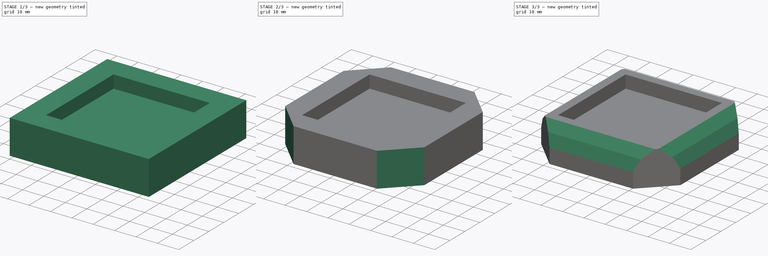
[diagram: build sequence overview — one tinted view per stage of 3, left to right]
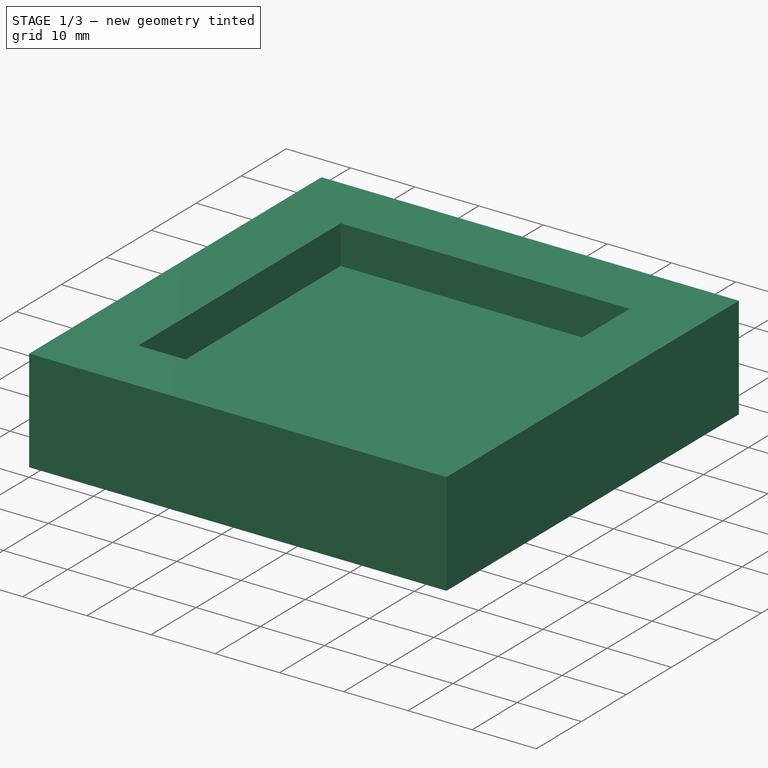
[diagram: stage 1 of 3 — iso view after this stage's code; geometry added in this stage tinted green]
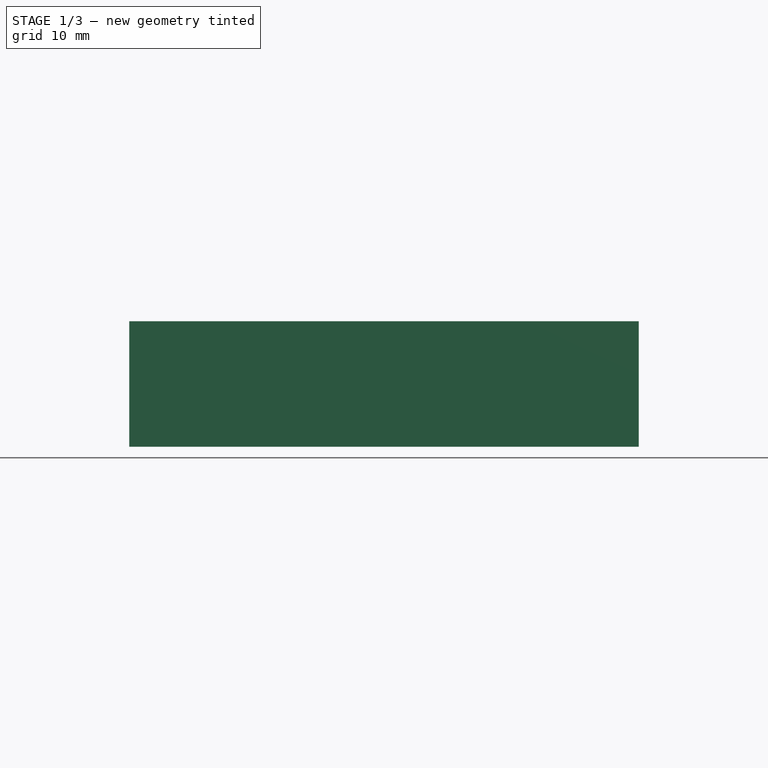
[diagram: stage 1 of 3 — front view after this stage's code; geometry added in this stage tinted green]
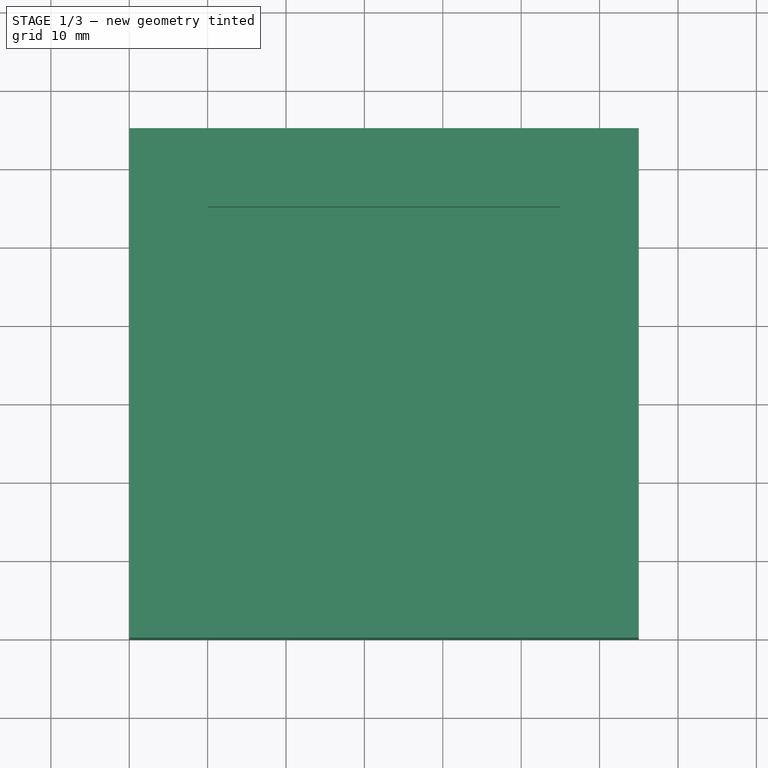
[diagram: stage 1 of 3 — top view after this stage's code; geometry added in this stage tinted green]
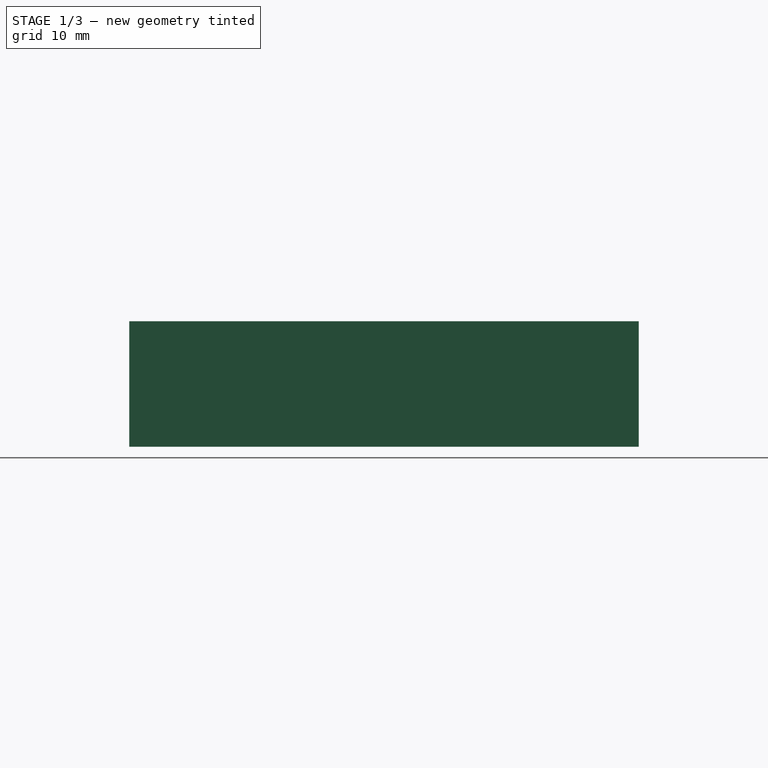
[diagram: stage 1 of 3 — right view after this stage's code; geometry added in this stage tinted green]
FCSTD DOCUMENT  (FreeCAD 0.17R7775 (Git))
Label: anti_skid_pad
License: All rights reserved
LicenseURL: http://en.wikipedia.org/wiki/All_rights_reserved
objects: PartDesign::Chamfer×3, Sketcher::SketchObject×2, PartDesign::Pad×1, PartDesign::Pocket×1, PartDesign::Body×1
note: 10 computed .brp shape members not serialized (recipe doc carries the construction recipe); baked Part::Feature solids carry a one-line shape summary decoded from their .brp

FEATURE [Sketcher::SketchObject] Sketch
  MapMode = 5
  Support = -> [XY_Plane]
  sketch-geometry (4):
    g0: LineSegment StartX=0 StartY=0 StartZ=0 EndX=65 EndY=0 EndZ=0
    g1: LineSegment StartX=65 StartY=0 StartZ=0 EndX=65 EndY=65 EndZ=0
    g2: LineSegment StartX=65 StartY=65 StartZ=0 EndX=0 EndY=65 EndZ=0
    g3: LineSegment StartX=0 StartY=65 StartZ=0 EndX=0 EndY=0 EndZ=0
  constraints (11):
    c: Coincident(g0,g1)
    c: Coincident(g1,g2)
    c: Coincident(g2,g3)
    c: Coincident(g3,g0)
    c: Horizontal(g0)
    c: Horizontal(g2)
    c: Vertical(g1)
    c: Vertical(g3)
    c: Coincident(g0,g-1)
    c: Equal(g2,g3)
    c: DistanceY(g3,g3) = 65
FEATURE [PartDesign::Pad] Pad
  Length = 16
  Length2 = 100
  Profile = -> Sketch
  Type = 0
FEATURE [Sketcher::SketchObject] Sketch001
  ExternalGeometry = -> [Pad]
  MapMode = 5
  Placement = pos=(0,0,16) rot=(0,0,1;0rad)
  Support = -> [Pad]
  sketch-geometry (12):
    g0: LineSegment StartX=10 StartY=10 StartZ=0 EndX=55 EndY=10 EndZ=0
    g1: LineSegment StartX=55 StartY=10 StartZ=0 EndX=55 EndY=55 EndZ=0
    g2: LineSegment StartX=55 StartY=55 StartZ=0 EndX=10 EndY=55 EndZ=0
    g3: LineSegment StartX=10 StartY=55 StartZ=0 EndX=10 EndY=10 EndZ=0
    g4: LineSegment [constr] StartX=0 StartY=0 StartZ=0 EndX=10 EndY=0 EndZ=0
    g5: LineSegment [constr] StartX=10 StartY=0 StartZ=0 EndX=10 EndY=10 EndZ=0
    g6: LineSegment [constr] StartX=10 StartY=10 StartZ=0 EndX=0 EndY=10 EndZ=0
    g7: LineSegment [constr] StartX=0 StartY=10 StartZ=0 EndX=0 EndY=0 EndZ=0
    g8: LineSegment [constr] StartX=55 StartY=55 StartZ=0 EndX=65 EndY=55 EndZ=0
    g9: LineSegment [constr] StartX=65 StartY=55 StartZ=0 EndX=65 EndY=65 EndZ=0
    g10: LineSegment [constr] StartX=65 StartY=65 StartZ=0 EndX=55 EndY=65 EndZ=0
    g11: LineSegment [constr] StartX=55 StartY=65 StartZ=0 EndX=55 EndY=55 EndZ=0
  constraints (32):
    c: Coincident(g0,g1)
    c: Coincident(g1,g2)
    c: Coincident(g2,g3)
    c: Coincident(g3,g0)
    c: Horizontal(g0)
    c: Horizontal(g2)
    c: Vertical(g1)
    c: Vertical(g3)
    c: Coincident(g4,g5)
    c: Coincident(g5,g6)
    c: Coincident(g6,g7)
    c: Coincident(g7,g4)
    c: Horizontal(g4)
    c: Horizontal(g6)
    c: Vertical(g5)
    c: Vertical(g7)
    c: Coincident(g4,g-1)
    c: Coincident(g5,g0)
    c: Coincident(g8,g9)
    c: Coincident(g9,g10)
    c: Coincident(g10,g11)
    c: Coincident(g11,g8)
    c: Horizontal(g8)
    c: Horizontal(g10)
    c: Vertical(g9)
    c: Vertical(g11)
    c: Coincident(g8,g1)
    c: Coincident(g9,g-3)
    c: Equal(g6,g5)
    c: Equal(g5,g8)
    c: Equal(g8,g11)
    c: DistanceX(g2,g2) = 45
FEATURE [PartDesign::Pocket] Pocket
  BaseFeature = -> Pad
  Length = 6
  Profile = -> Sketch001
  Type = 0
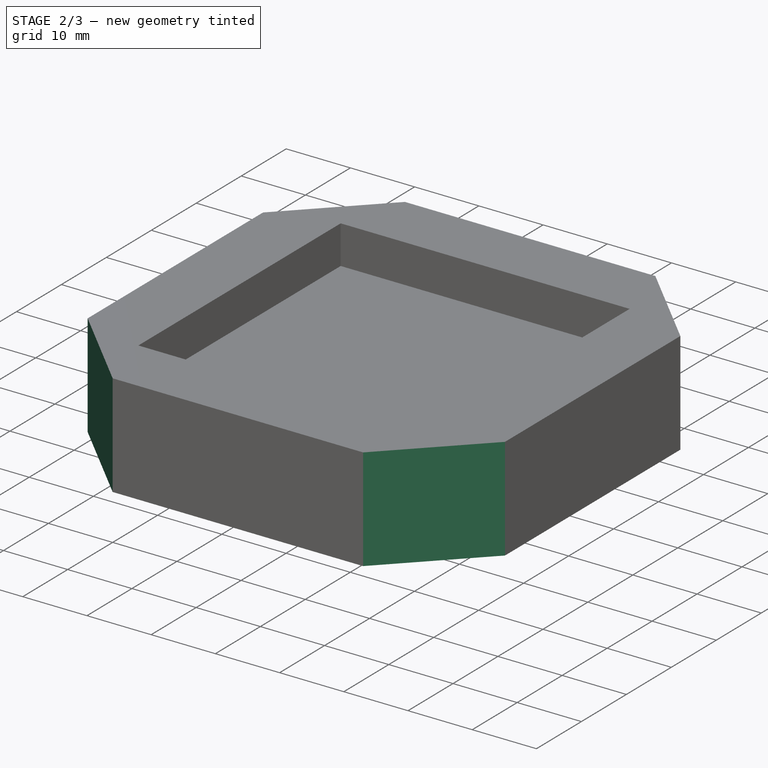
[diagram: stage 2 of 3 — iso view after this stage's code; geometry added in this stage tinted green]
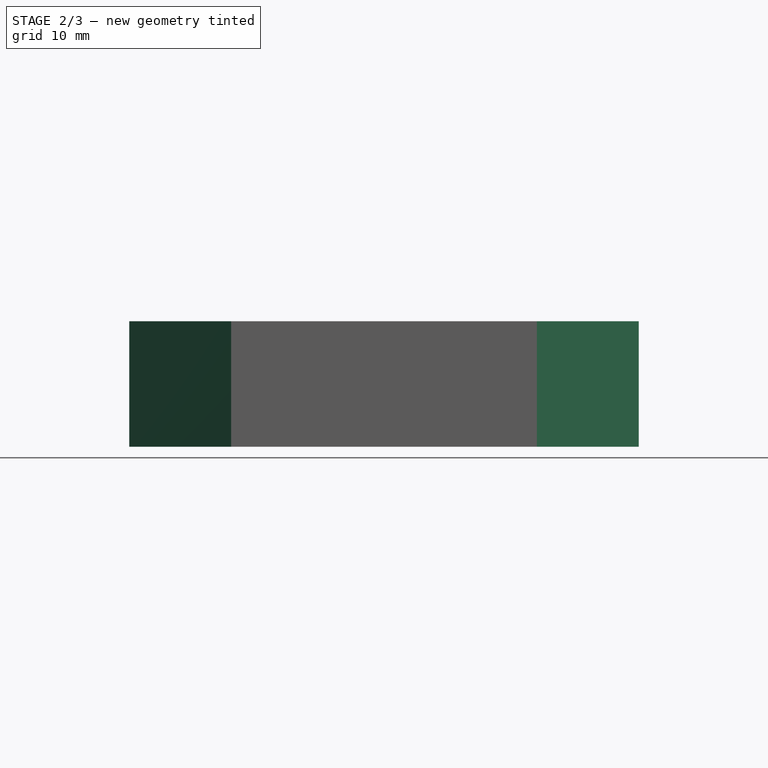
[diagram: stage 2 of 3 — front view after this stage's code; geometry added in this stage tinted green]
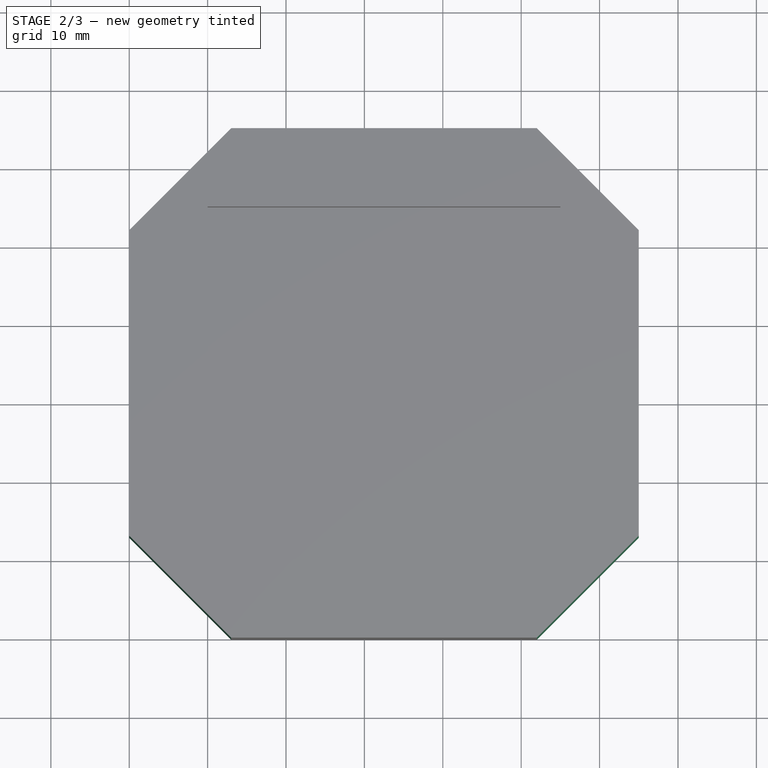
[diagram: stage 2 of 3 — top view after this stage's code; geometry added in this stage tinted green]
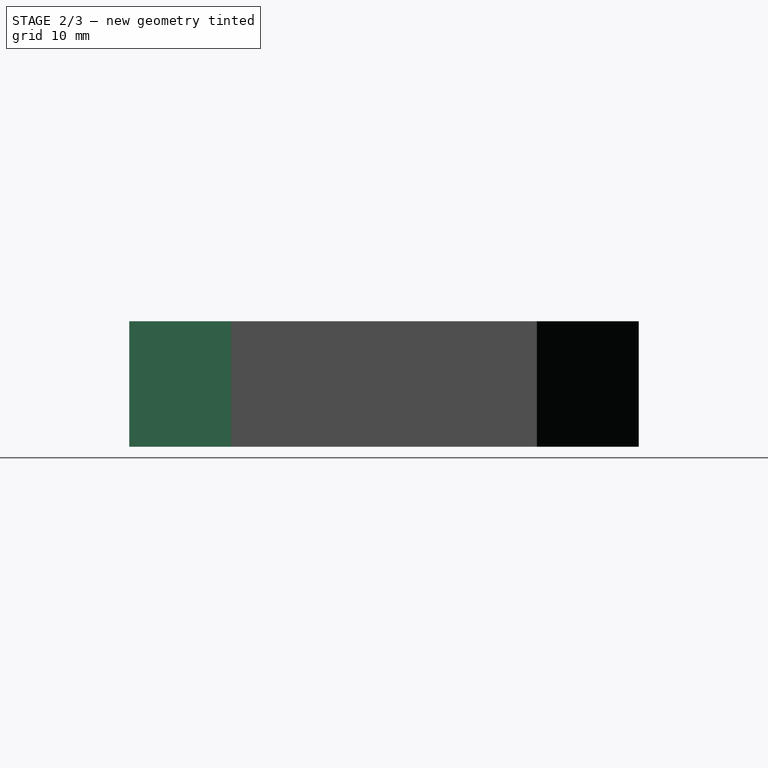
[diagram: stage 2 of 3 — right view after this stage's code; geometry added in this stage tinted green]
FEATURE [PartDesign::Chamfer] Chamfer
  Base = -> Pocket [Edge1,Edge2,Edge8,Edge5]
  BaseFeature = -> Pocket
  Size = 13
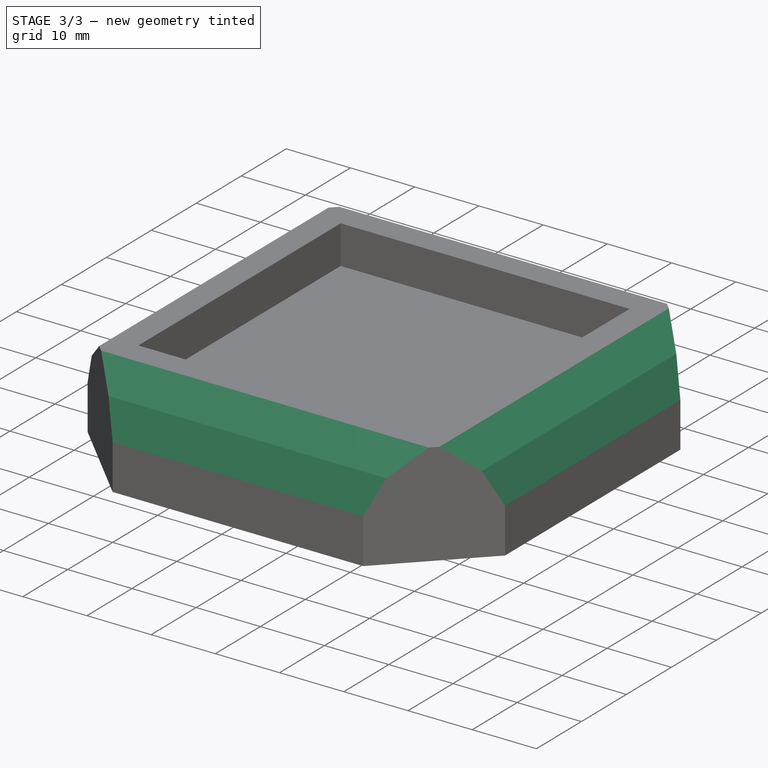
[diagram: stage 3 of 3 — iso view after this stage's code; geometry added in this stage tinted green]
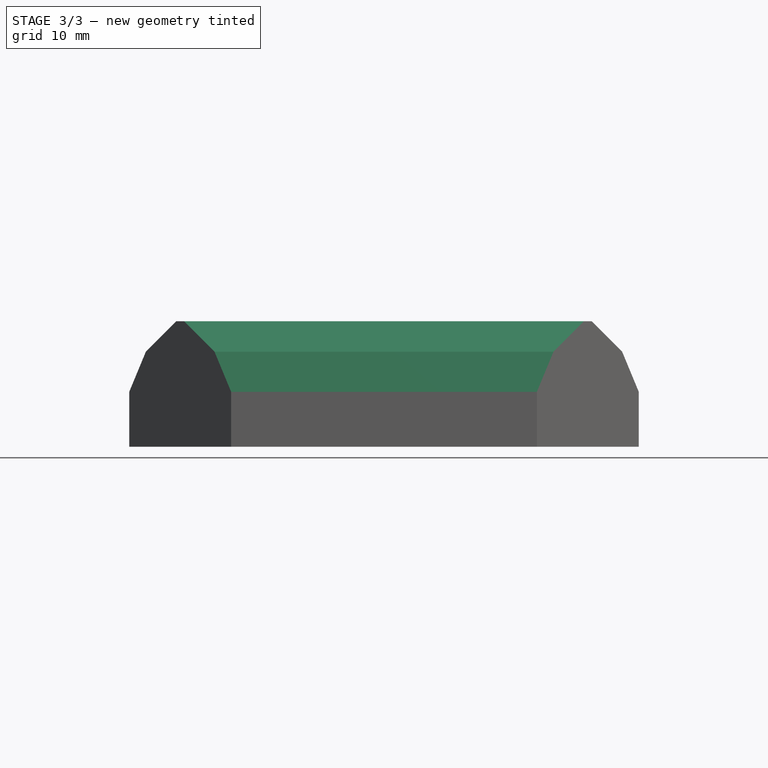
[diagram: stage 3 of 3 — front view after this stage's code; geometry added in this stage tinted green]
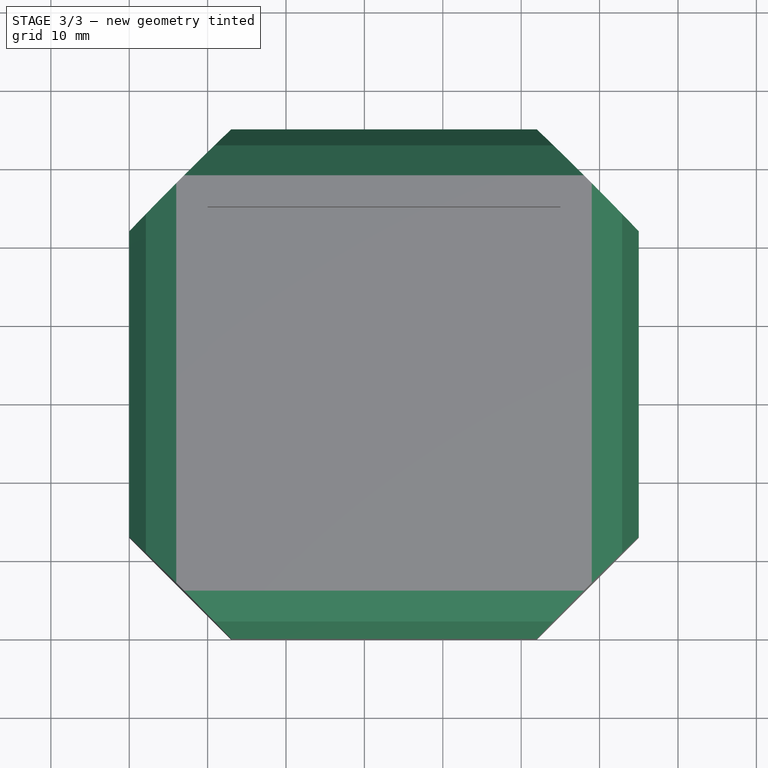
[diagram: stage 3 of 3 — top view after this stage's code; geometry added in this stage tinted green]
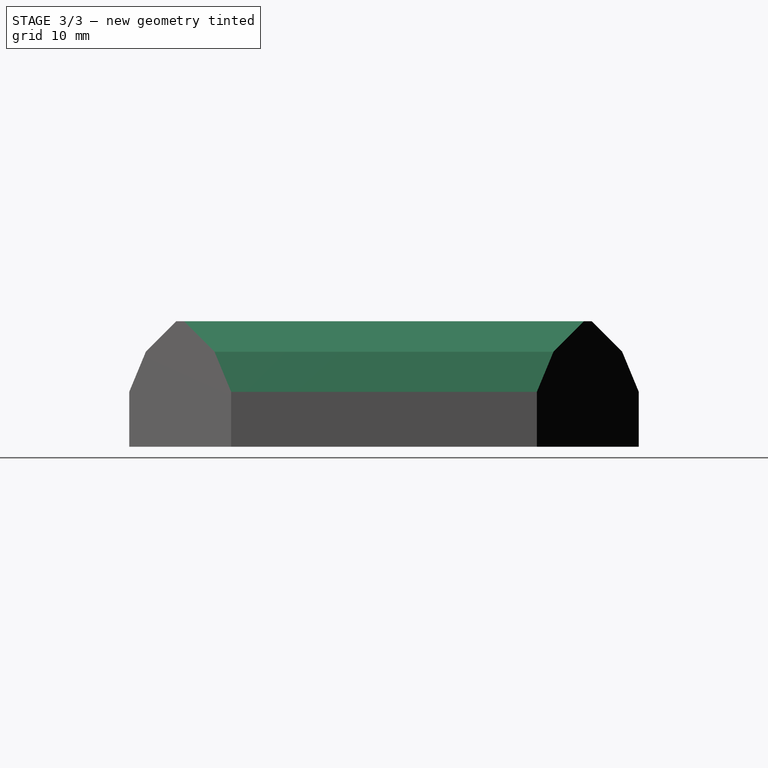
[diagram: stage 3 of 3 — right view after this stage's code; geometry added in this stage tinted green]
FEATURE [PartDesign::Chamfer] Chamfer001
  Base = -> Chamfer [Edge4,Edge17,Edge20,Edge16]
  BaseFeature = -> Chamfer
  Size = 6
FEATURE [PartDesign::Chamfer] Chamfer002
  Base = -> Chamfer001 [Edge2,Edge33,Edge40,Edge31]
  BaseFeature = -> Chamfer001
  Size = 3
FEATURE [PartDesign::Body] Body
  Model = -> [Sketch,Pad,Sketch001,Pocket,Chamfer,Chamfer001,Chamfer002]
  Origin = -> BodyOrigin
  Tip = -> Chamfer002
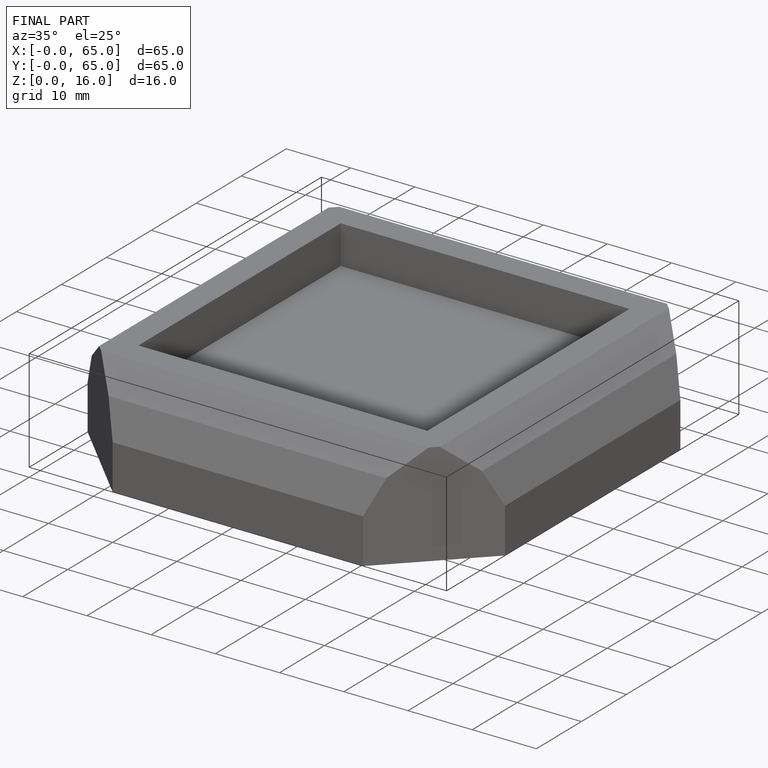
[diagram: finished part — iso view with bounding-box wireframe]
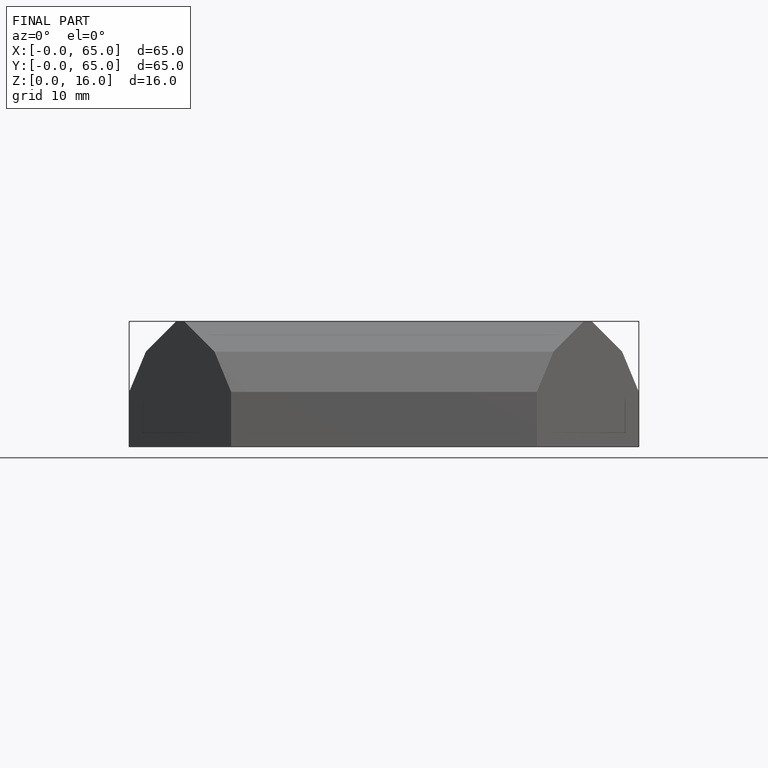
[diagram: finished part — front view with bounding-box wireframe]
